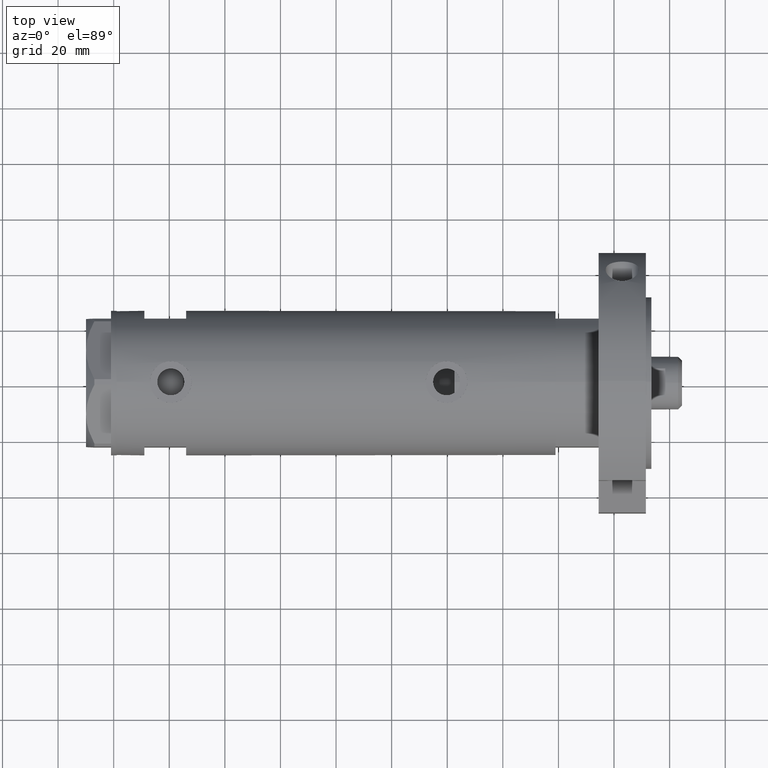
[diagram: clean part render]
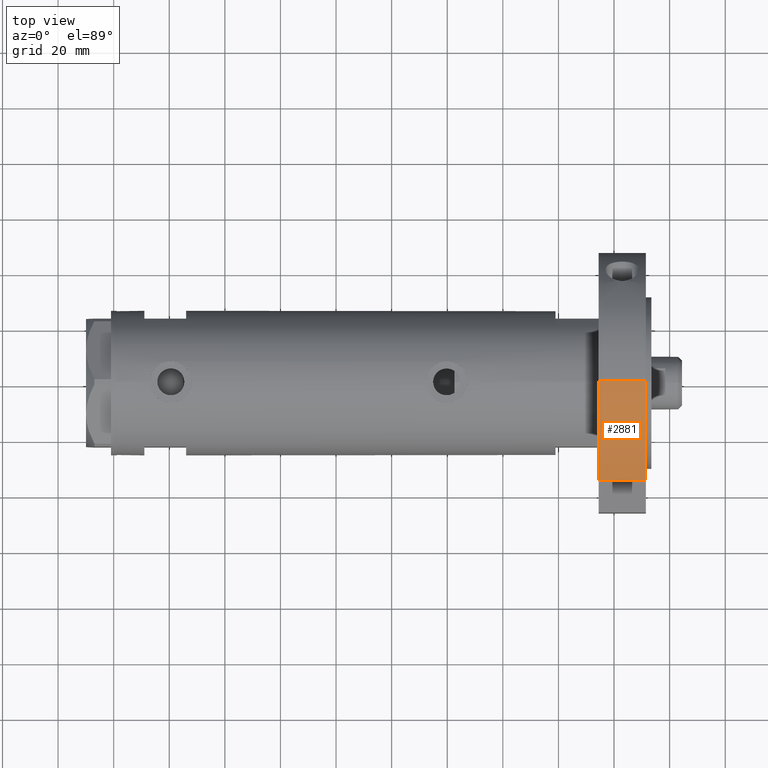
[diagram: same view with one face highlighted and labeled with its STEP entity id]
A machine part, top view. The second image highlights one B-rep face of the part: STEP entity #2881.
In plain terms, the highlighted cylindrical surface (partial cylindrical patch) has radius 47 mm, axis along (-1, -0, 0).
Its self-contained STEP definition (entity closure, byte-faithful):
#149 = ORIENTED_EDGE ( 'NONE', *, *, #5051, .T. ) ;
#206 = CIRCLE ( 'NONE', #5065, 46.99999999999999289 ) ;
#440 = AXIS2_PLACEMENT_3D ( 'NONE', #5533, #5569, #1195 ) ;
#560 = DIRECTION ( 'NONE',  ( 1.000000000000000000, 0.000000000000000000, 0.000000000000000000 ) ) ;
#563 = VERTEX_POINT ( 'NONE', #3234 ) ;
#665 = ORIENTED_EDGE ( 'NONE', *, *, #4454, .T. ) ;
#678 = DIRECTION ( 'NONE',  ( -0.000000000000000000, -0.000000000000000000, -1.000000000000000000 ) ) ;
#833 = CYLINDRICAL_SURFACE ( 'NONE', #6286, 46.99999999999999289 ) ;
#1059 = CARTESIAN_POINT ( 'NONE',  ( 30.83217135699462830, 35.47361286101148892, 0.000000000000000000 ) ) ;
#1155 = DIRECTION ( 'NONE',  ( 0.000000000000000000, 0.000000000000000000, 1.000000000000000000 ) ) ;
#1195 = DIRECTION ( 'NONE',  ( 1.000000000000000000, 0.000000000000000000, 0.000000000000000000 ) ) ;
#1529 = CARTESIAN_POINT ( 'NONE',  ( 0.000000000000000000, 0.000000000000000000, 17.00000000000000000 ) ) ;
#1866 = ORIENTED_EDGE ( 'NONE', *, *, #4357, .T. ) ;
#2096 = CARTESIAN_POINT ( 'NONE',  ( 46.99999999999999289, 5.755839955992559063E-15, 0.000000000000000000 ) ) ;
#2120 = CARTESIAN_POINT ( 'NONE',  ( 30.83217135699462830, 35.47361286101148892, 17.00000000000000000 ) ) ;
#2348 = CARTESIAN_POINT ( 'NONE',  ( 0.000000000000000000, 0.000000000000000000, 0.000000000000000000 ) ) ;
#2522 = LINE ( 'NONE', #6186, #7256 ) ;
#2881 = ADVANCED_FACE ( 'NONE', ( #3320 ), #833, .T. ) ;
#3093 = DIRECTION ( 'NONE',  ( -0.000000000000000000, -0.000000000000000000, 1.000000000000000000 ) ) ;
#3234 = CARTESIAN_POINT ( 'NONE',  ( 46.99999999999999289, 5.755839955992559063E-15, 17.00000000000000000 ) ) ;
#3320 = FACE_OUTER_BOUND ( 'NONE', #4314, .T. ) ;
#4314 = EDGE_LOOP ( 'NONE', ( #5951, #149, #1866, #665 ) ) ;
#4357 = EDGE_CURVE ( 'NONE', #4749, #5324, #206, .T. ) ;
#4454 = EDGE_CURVE ( 'NONE', #5324, #7006, #2522, .T. ) ;
#4749 = VERTEX_POINT ( 'NONE', #2096 ) ;
#5051 = EDGE_CURVE ( 'NONE', #563, #4749, #7489, .T. ) ;
#5065 = AXIS2_PLACEMENT_3D ( 'NONE', #2348, #1155, #560 ) ;
#5324 = VERTEX_POINT ( 'NONE', #1059 ) ;
#5533 = CARTESIAN_POINT ( 'NONE',  ( 0.000000000000000000, 0.000000000000000000, 17.00000000000000000 ) ) ;
#5569 = DIRECTION ( 'NONE',  ( 0.000000000000000000, 0.000000000000000000, 1.000000000000000000 ) ) ;
#5951 = ORIENTED_EDGE ( 'NONE', *, *, #6387, .F. ) ;
#6171 = CARTESIAN_POINT ( 'NONE',  ( 46.99999999999999289, 5.755839955992559063E-15, 17.00000000000000000 ) ) ;
#6186 = CARTESIAN_POINT ( 'NONE',  ( 30.83217135699462830, 35.47361286101148892, 0.000000000000000000 ) ) ;
#6286 = AXIS2_PLACEMENT_3D ( 'NONE', #1529, #7155, #6519 ) ;
#6387 = EDGE_CURVE ( 'NONE', #563, #7006, #7377, .T. ) ;
#6470 = VECTOR ( 'NONE', #678, 1000.000000000000000 ) ;
#6519 = DIRECTION ( 'NONE',  ( -1.000000000000000000, 0.000000000000000000, 0.000000000000000000 ) ) ;
#7006 = VERTEX_POINT ( 'NONE', #2120 ) ;
#7155 = DIRECTION ( 'NONE',  ( -0.000000000000000000, -0.000000000000000000, -1.000000000000000000 ) ) ;
#7256 = VECTOR ( 'NONE', #3093, 1000.000000000000000 ) ;
#7377 = CIRCLE ( 'NONE', #440, 46.99999999999999289 ) ;
#7489 = LINE ( 'NONE', #6171, #6470 ) ;